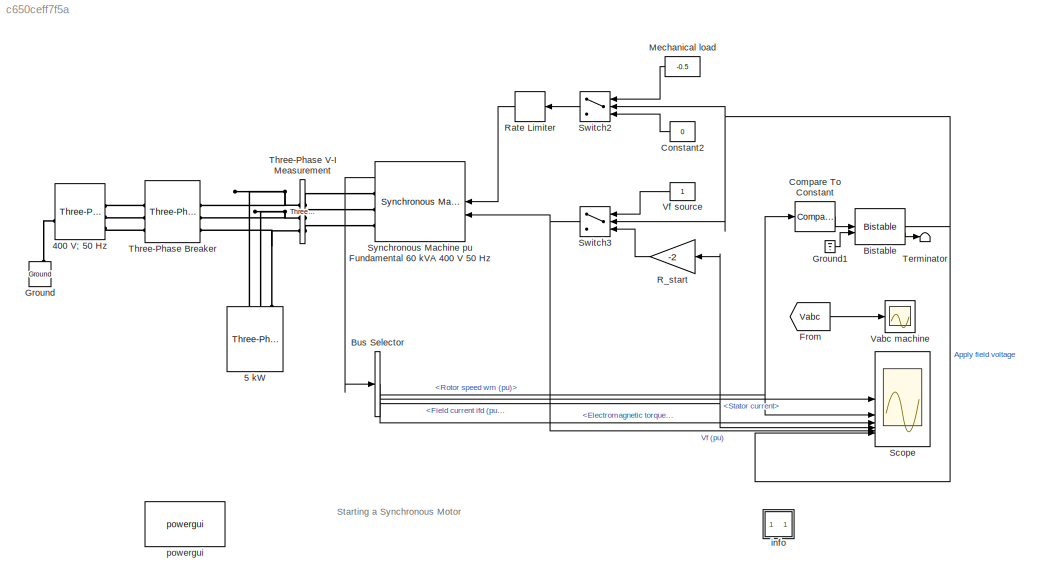
MODEL slx_c650ceff7f5a
KIND model
CONFIG AbsTol = auto
CONFIG EnableMultiTasking = on
CONFIG FixedStep = auto
CONFIG MaxStep = 500e-6
CONFIG MinStep = auto
CONFIG RelTol = 1e-4
CONFIG SampleTimeConstraint = Unconstrained
CONFIG SolverName = ode23tb
CONFIG StartTime = 0.0
CONFIG StopTime = 3
BLOCK [Reference] 400 V; 50 Hz  REF=spsThreePhaseProgrammableVoltageSourceLib/Three-Phase
Programmable
Voltage Source
  SourceBlock = spsThreePhaseProgrammableVoltageSourceLib/Three-Phase\nProgrammable\nVoltage Source
  SourceType = Three-Phase Programmable Voltage Source
BLOCK [Reference] 5 kW  REF=spsThreePhaseSeriesRLCLoadLib/Three-Phase
Series RLC Load
  AttributesFormatString = \n
  NameLocation = right
  SourceBlock = spsThreePhaseSeriesRLCLoadLib/Three-Phase\nSeries RLC Load
  SourceType = Three-Phase Series RLC Load
BLOCK [Reference] Bistable  REF=spsBistableLib/Bistable
  SourceBlock = spsBistableLib/Bistable
  SourceType = Bistable
BLOCK [BusSelector] Bus Selector
  OutputSignals = Stator current,Mechanical.Rotor speed  wm (pu),Mechanical.Electromagnetic torque  Te (pu),dq0 components.Field current  ifd (pu)
BLOCK [Reference] Compare To Constant  REF=simulink/Logic and Bit
Operations/Compare
To Constant
  NameLocation = top
  SourceBlock = simulink/Logic and Bit\nOperations/Compare\nTo Constant
  SourceType = Compare To Constant
BLOCK [Constant] Constant2
  Value = 0
BLOCK [From] From
  CloseFcn = tagdialog Close
  GotoTag = Vabc
  TagVisibility = global
BLOCK [Reference] Ground  REF=spsGroundLib/Ground
  NameLocation = right
  SourceBlock = spsGroundLib/Ground
  SourceType = Ground
BLOCK [Ground] Ground1
BLOCK [Constant] Mechanical load
  NameLocation = top
  Value = -0.5
BLOCK [Gain] R_start
  Gain = -2
BLOCK [RateLimiter] Rate Limiter
  FallingSlewLimit = -0.5
  RisingSlewLimit = 0.5
  SampleTimeMode = inherited
BLOCK [Scope] Scope
  Floating = off
  NumInputPorts = 6
  ScopeSpecificationString = Simulink.scopes.TimeScopeBlockCfg('CurrentConfiguration', extmgr.ConfigurationSet(extmgr.Configuration('Core','General UI',true),extmgr.Configuration('Core','Source UI',true),extmgr.Configuration('Sources','WiredSimulink',true,'DataLoggingVariableName','ScopeData1','DataLoggingSaveFormat','StructureWithTime','DataLoggingDecimation','1','DataLoggingDecimateData',true),extmgr.Configuration('Visuals'...<+5784ch>
BLOCK [Switch] Switch2
  InputSameDT = off
  SaturateOnIntegerOverflow = off
  Threshold = 0.5
BLOCK [Switch] Switch3
  InputSameDT = off
  SaturateOnIntegerOverflow = off
  Threshold = 0.5
BLOCK [Reference] Synchronous Machine pu Fundamental 60 kVA  400 V 50 Hz  REF=spsSynchronousMachinepuFundamentalLib/Synchronous Machine
pu Fundamental
  SourceBlock = spsSynchronousMachinepuFundamentalLib/Synchronous Machine\npu Fundamental
  SourceType = Synchronous Machine
BLOCK [Terminator] Terminator
BLOCK [Reference] Three-Phase Breaker  REF=spsThreePhaseBreakerLib/Three-Phase Breaker
  SourceBlock = spsThreePhaseBreakerLib/Three-Phase Breaker
  SourceType = Three-Phase Breaker
BLOCK [Reference] Three-Phase V-I Measurement  REF=spsThreePhaseVIMeasurementLib/Three-Phase
V-I Measurement
  SourceBlock = spsThreePhaseVIMeasurementLib/Three-Phase\nV-I Measurement
  SourceType = Three-Phase VI Measurement
BLOCK [Scope] Vabc machine
  Floating = off
  NumInputPorts = 1
  ScopeSpecificationString = Simulink.scopes.TimeScopeBlockCfg('CurrentConfiguration', extmgr.ConfigurationSet(extmgr.Configuration('Core','General UI',true,'FigureColor',[0.313725490196078 0.313725490196078 0.313725490196078]),extmgr.Configuration('Core','Source UI',true),extmgr.Configuration('Sources','WiredSimulink',true,'DataLoggingSaveFormat','StructureWithTime','DataLoggingDecimation','1','DataLoggingDecimateData',true)...<+1865ch>
BLOCK [Constant] Vf source
  NameLocation = top
BLOCK [SubSystem] info
  OpenFcn = showExample("simscapeelectricalsps/SynchronousMotorStartingExample")
BLOCK [Reference] powergui  REF=spspowerguiLib/powergui
  Priority = 2
  SourceBlock = spspowerguiLib/powergui
  SourceType = PSB option menu block
ANNOTATION (root): Starting a Synchronous Motor
NET Bistable:1 -> Scope:6, Switch2:2, Switch3:2
LINE Bistable:2 -> Terminator:1
LINE Bus Selector:1 -> Scope:1
NET Bus Selector:2 -> Compare To Constant:1, Scope:2
LINE Bus Selector:3 -> Scope:3
NET Bus Selector:4 -> R_start:1, Scope:4
LINE Compare To Constant:1 -> Bistable:1
LINE Constant2:1 -> Switch2:3
LINE From:1 -> Vabc machine:1
LINE Ground1:1 -> Bistable:2
LINE Mechanical load:1 -> Switch2:1
LINE R_start:1 -> Switch3:3
LINE Rate Limiter:1 -> Synchronous Machine pu Fundamental 60 kVA  400 V 50 Hz:1
LINE Switch2:1 -> Rate Limiter:1
NET Switch3:1 -> Scope:5, Synchronous Machine pu Fundamental 60 kVA  400 V 50 Hz:2
LINE Synchronous Machine pu Fundamental 60 kVA  400 V 50 Hz:1 -> Bus Selector:1
LINE Vf source:1 -> Switch3:1
PLINE 400 V; 50 Hz:LConn1 -- Ground:LConn1
PLINE 400 V; 50 Hz:RConn1 -- Three-Phase Breaker:LConn1
PLINE 400 V; 50 Hz:RConn2 -- Three-Phase Breaker:LConn2
PLINE 400 V; 50 Hz:RConn3 -- Three-Phase Breaker:LConn3
PNET net1: 5 kW:LConn1 -- Three-Phase Breaker:RConn1 -- Three-Phase V-I Measurement:LConn1
PNET net2: 5 kW:LConn2 -- Three-Phase Breaker:RConn2 -- Three-Phase V-I Measurement:LConn2
PNET net3: 5 kW:LConn3 -- Three-Phase Breaker:RConn3 -- Three-Phase V-I Measurement:LConn3
PLINE Synchronous Machine pu Fundamental 60 kVA  400 V 50 Hz:RConn1 -- Three-Phase V-I Measurement:RConn1
PLINE Synchronous Machine pu Fundamental 60 kVA  400 V 50 Hz:RConn2 -- Three-Phase V-I Measurement:RConn2
PLINE Synchronous Machine pu Fundamental 60 kVA  400 V 50 Hz:RConn3 -- Three-Phase V-I Measurement:RConn3
note: NET lines group one-source signal fan-out (src -> all destinations, sorted); 1:1 wires keep LINE; PNET lines group multi-terminal physical nets as a canonical sorted terminal list (undirected conserving connections); 2-terminal nets keep the pairwise PLINE form
